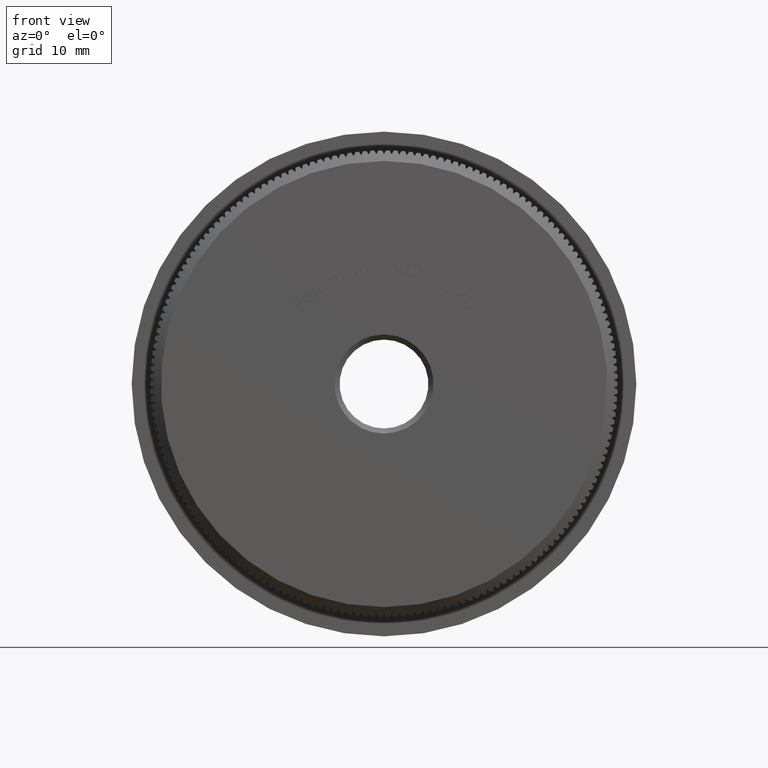
[diagram: clean part render]
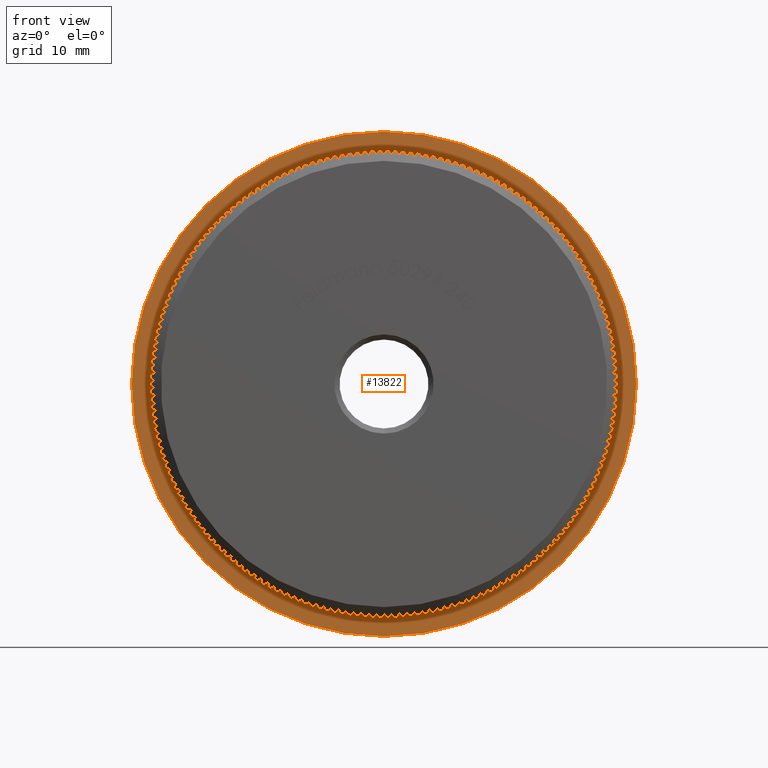
[diagram: same view with one face highlighted and labeled with its STEP entity id]
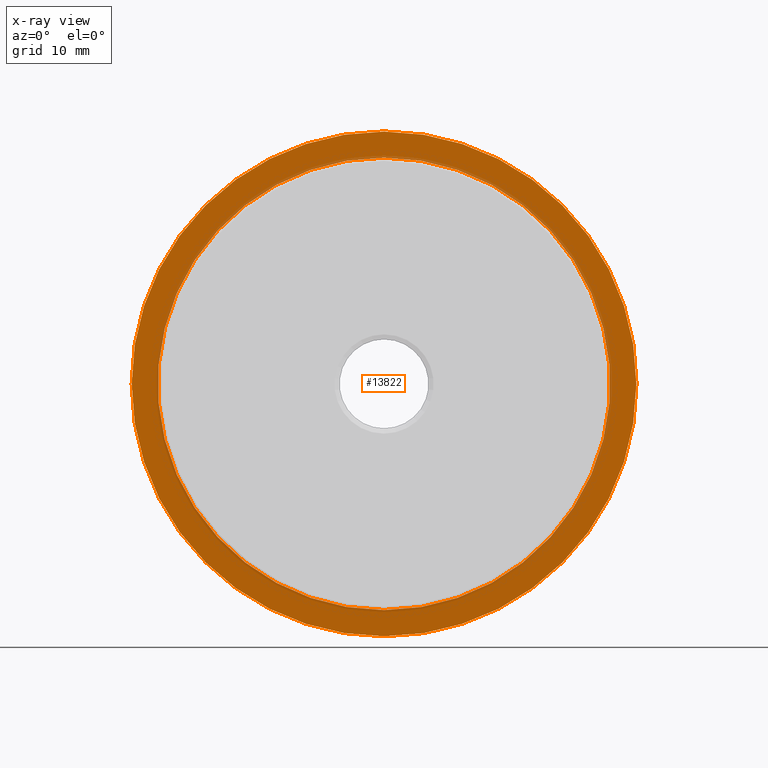
[diagram: x-ray of the same camera — body ghosted, the highlighted face saturated]
A machine part, front view. The second image highlights one B-rep face of the part: STEP entity #13822.
The next image is the same camera in x-ray: the body ghosted, the highlighted face saturated — about 8% of this face is hidden behind the body in this view.
In plain terms, the highlighted planar face has unit normal (0, -1, -0).
Its self-contained STEP definition (entity closure, byte-faithful):
#500 = EDGE_CURVE ( 'NONE', #17846, #19372, #21567, .T. ) ;
#1693 = CARTESIAN_POINT ( 'NONE',  ( 21.65000000000000200, 8.000000000000000000, 0.0000000000000000000 ) ) ;
#3552 = EDGE_CURVE ( 'NONE', #19372, #17846, #29597, .T. ) ;
#4536 = PLANE ( 'NONE',  #16543 ) ;
#4930 = DIRECTION ( 'NONE',  ( 0.0000000000000000000, 0.0000000000000000000, -1.000000000000000000 ) ) ;
#5956 = AXIS2_PLACEMENT_3D ( 'NONE', #12045, #14249, #17017 ) ;
#6853 = DIRECTION ( 'NONE',  ( -0.0000000000000000000, -1.000000000000000000, -0.0000000000000000000 ) ) ;
#7343 = CARTESIAN_POINT ( 'NONE',  ( 0.0000000000000000000, 8.000000000000000000, -24.14999999999999900 ) ) ;
#8231 = FACE_OUTER_BOUND ( 'NONE', #8370, .T. ) ;
#8370 = EDGE_LOOP ( 'NONE', ( #9101, #31957 ) ) ;
#9003 = ORIENTED_EDGE ( 'NONE', *, *, #11055, .F. ) ;
#9101 = ORIENTED_EDGE ( 'NONE', *, *, #500, .T. ) ;
#9730 = AXIS2_PLACEMENT_3D ( 'NONE', #32146, #6853, #11647 ) ;
#11055 = EDGE_CURVE ( 'NONE', #31294, #18113, #32557, .T. ) ;
#11647 = DIRECTION ( 'NONE',  ( 0.0000000000000000000, 0.0000000000000000000, -1.000000000000000000 ) ) ;
#11771 = DIRECTION ( 'NONE',  ( 0.0000000000000000000, 0.0000000000000000000, -1.000000000000000000 ) ) ;
#12045 = CARTESIAN_POINT ( 'NONE',  ( 0.0000000000000000000, 8.000000000000000000, 0.0000000000000000000 ) ) ;
#12254 = DIRECTION ( 'NONE',  ( -0.0000000000000000000, -1.000000000000000000, -0.0000000000000000000 ) ) ;
#13497 = AXIS2_PLACEMENT_3D ( 'NONE', #27423, #12254, #4930 ) ;
#13619 = CARTESIAN_POINT ( 'NONE',  ( 0.0000000000000000000, 8.000000000000000000, 0.0000000000000000000 ) ) ;
#13822 = ADVANCED_FACE ( 'NONE', ( #8231, #15401 ), #4536, .T. ) ;
#14191 = CARTESIAN_POINT ( 'NONE',  ( 2.694222958124177200E-015, 8.000000000000000000, 21.65000000000000200 ) ) ;
#14249 = DIRECTION ( 'NONE',  ( -0.0000000000000000000, -1.000000000000000000, -0.0000000000000000000 ) ) ;
#15401 = FACE_BOUND ( 'NONE', #18406, .T. ) ;
#16163 = DIRECTION ( 'NONE',  ( -0.0000000000000000000, -1.000000000000000000, -0.0000000000000000000 ) ) ;
#16543 = AXIS2_PLACEMENT_3D ( 'NONE', #1693, #26943, #11771 ) ;
#17017 = DIRECTION ( 'NONE',  ( 0.0000000000000000000, 0.0000000000000000000, -1.000000000000000000 ) ) ;
#17846 = VERTEX_POINT ( 'NONE', #7343 ) ;
#18113 = VERTEX_POINT ( 'NONE', #14191 ) ;
#18296 = ORIENTED_EDGE ( 'NONE', *, *, #28990, .F. ) ;
#18406 = EDGE_LOOP ( 'NONE', ( #9003, #18296 ) ) ;
#18732 = DIRECTION ( 'NONE',  ( 0.0000000000000000000, 0.0000000000000000000, -1.000000000000000000 ) ) ;
#19372 = VERTEX_POINT ( 'NONE', #30142 ) ;
#19598 = AXIS2_PLACEMENT_3D ( 'NONE', #13619, #16163, #18732 ) ;
#21567 = CIRCLE ( 'NONE', #9730, 24.14999999999999900 ) ;
#26943 = DIRECTION ( 'NONE',  ( 0.0000000000000000000, -1.000000000000000000, -0.0000000000000000000 ) ) ;
#27423 = CARTESIAN_POINT ( 'NONE',  ( 0.0000000000000000000, 8.000000000000000000, 0.0000000000000000000 ) ) ;
#27935 = CARTESIAN_POINT ( 'NONE',  ( 0.0000000000000000000, 8.000000000000000000, -21.65000000000000200 ) ) ;
#28990 = EDGE_CURVE ( 'NONE', #18113, #31294, #29086, .T. ) ;
#29086 = CIRCLE ( 'NONE', #19598, 21.65000000000000200 ) ;
#29597 = CIRCLE ( 'NONE', #5956, 24.14999999999999900 ) ;
#30142 = CARTESIAN_POINT ( 'NONE',  ( 2.957522019940858300E-015, 8.000000000000000000, 24.14999999999999900 ) ) ;
#31294 = VERTEX_POINT ( 'NONE', #27935 ) ;
#31957 = ORIENTED_EDGE ( 'NONE', *, *, #3552, .T. ) ;
#32146 = CARTESIAN_POINT ( 'NONE',  ( 0.0000000000000000000, 8.000000000000000000, 0.0000000000000000000 ) ) ;
#32557 = CIRCLE ( 'NONE', #13497, 21.65000000000000200 ) ;